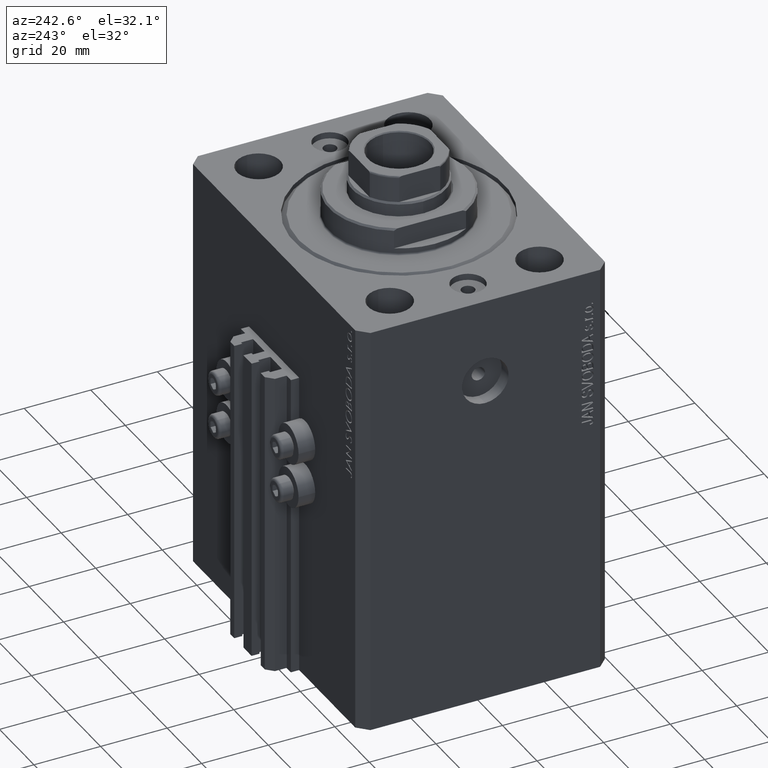
[diagram: clean part render]
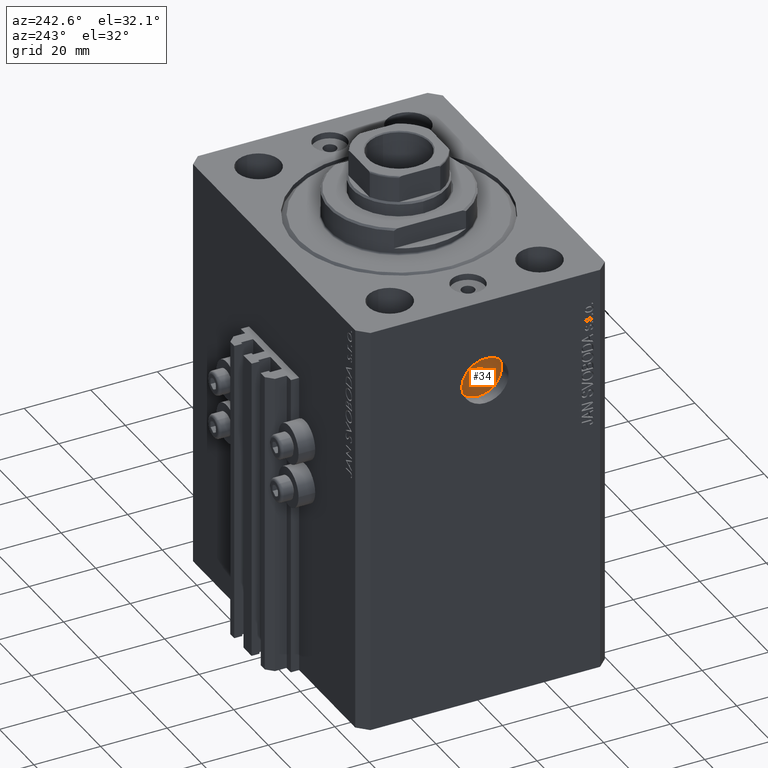
[diagram: same view with one face highlighted and labeled with its STEP entity id]
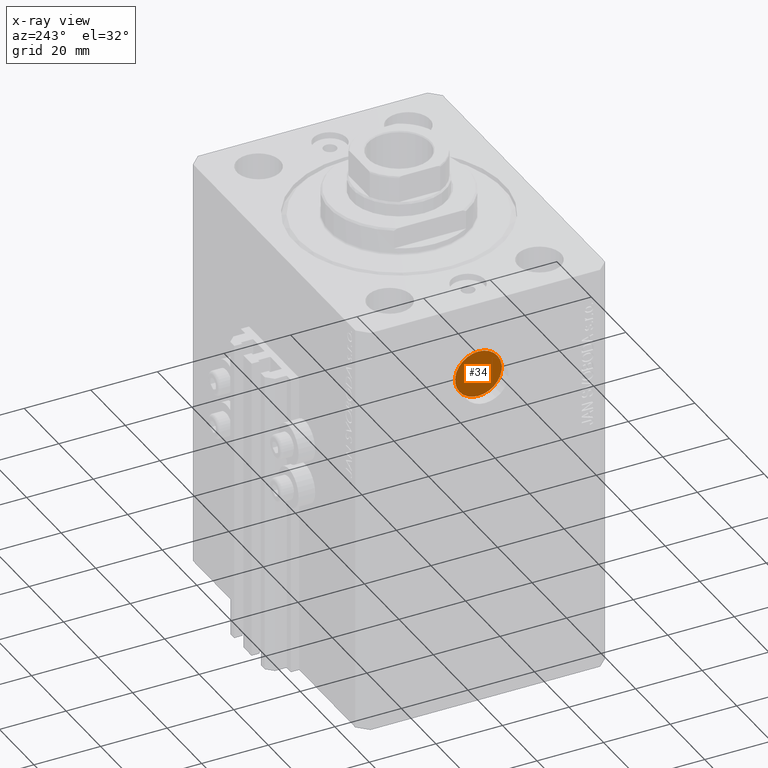
[diagram: x-ray of the same camera — body ghosted, the highlighted face saturated]
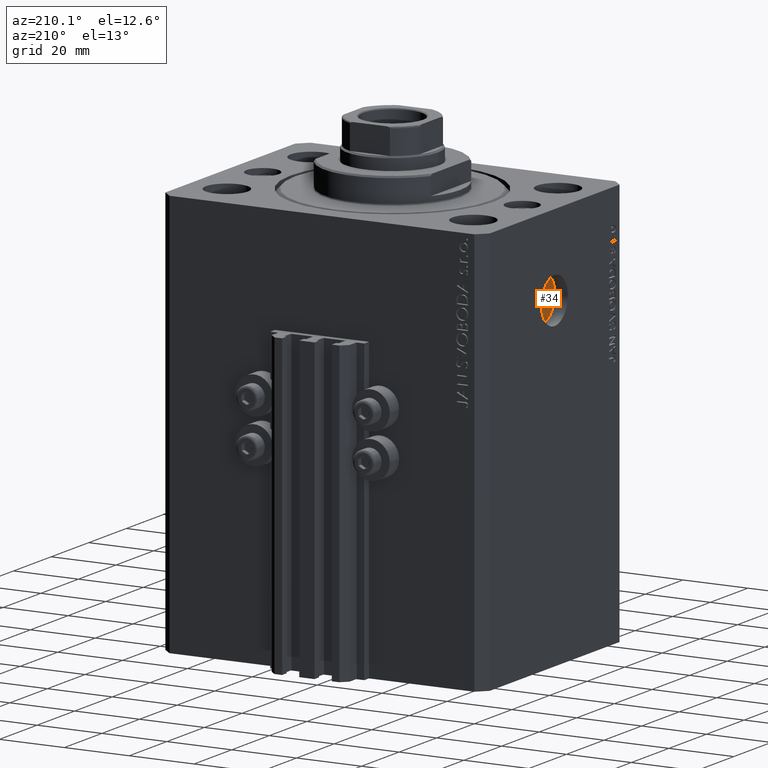
[diagram: same view with one face highlighted and labeled with its STEP entity id]
A machine part, auxiliary view. The second image highlights one B-rep face of the part: STEP entity #34.
The next image is the same camera in x-ray: the body ghosted, the highlighted face saturated — about 0% of this face is hidden behind the body in this view.
A second angle (auxiliary view) of the same face is appended — the face is thin or edge-on in the first view.
In plain terms, the highlighted planar face has unit normal (-1, 0, 0).
Its self-contained STEP definition (entity closure, byte-faithful):
#34 = ADVANCED_FACE ( 'NONE', ( #11182, #3787 ), #4498, .T. ) ;
#223 = DIRECTION ( 'NONE',  ( 0.000000000000000000, 0.000000000000000000, 1.000000000000000000 ) ) ;
#392 = DIRECTION ( 'NONE',  ( 0.000000000000000000, 0.000000000000000000, 1.000000000000000000 ) ) ;
#611 = CARTESIAN_POINT ( 'NONE',  ( -46.00000000000001421, -1.005636797667714365E-14, -24.99999999999999645 ) ) ;
#1105 = CIRCLE ( 'NONE', #27804, 1.999999999999998224 ) ;
#3787 = FACE_OUTER_BOUND ( 'NONE', #30898, .T. ) ;
#3927 = ORIENTED_EDGE ( 'NONE', *, *, #30074, .F. ) ;
#4220 = EDGE_LOOP ( 'NONE', ( #3927, #33845 ) ) ;
#4498 = PLANE ( 'NONE',  #39076 ) ;
#6119 = VERTEX_POINT ( 'NONE', #26156 ) ;
#6131 = EDGE_CURVE ( 'NONE', #8043, #18389, #18644, .T. ) ;
#6280 = EDGE_CURVE ( 'NONE', #18389, #8043, #27819, .T. ) ;
#7581 = ORIENTED_EDGE ( 'NONE', *, *, #6131, .T. ) ;
#8043 = VERTEX_POINT ( 'NONE', #25063 ) ;
#8924 = DIRECTION ( 'NONE',  ( -1.000000000000000000, 0.000000000000000000, 0.000000000000000000 ) ) ;
#11155 = ORIENTED_EDGE ( 'NONE', *, *, #6280, .T. ) ;
#11182 = FACE_BOUND ( 'NONE', #4220, .T. ) ;
#12174 = CARTESIAN_POINT ( 'NONE',  ( -46.00000000000001421, -1.005636797667714365E-14, -18.00000000000000000 ) ) ;
#12192 = EDGE_CURVE ( 'NONE', #6119, #42351, #15776, .T. ) ;
#15491 = CARTESIAN_POINT ( 'NONE',  ( -46.00000000000001421, -1.005636797667714365E-14, -24.99999999999999645 ) ) ;
#15599 = CARTESIAN_POINT ( 'NONE',  ( -46.00000000000001421, -1.005636797667714365E-14, -23.00000000000000000 ) ) ;
#15776 = CIRCLE ( 'NONE', #22635, 1.999999999999998224 ) ;
#18389 = VERTEX_POINT ( 'NONE', #12174 ) ;
#18644 = CIRCLE ( 'NONE', #45333, 6.999999999999999112 ) ;
#19079 = DIRECTION ( 'NONE',  ( -1.000000000000000000, 0.000000000000000000, 0.000000000000000000 ) ) ;
#22635 = AXIS2_PLACEMENT_3D ( 'NONE', #44094, #32877, #392 ) ;
#25063 = CARTESIAN_POINT ( 'NONE',  ( -46.00000000000001421, -9.199115217273997614E-15, -32.00000000000000000 ) ) ;
#25177 = DIRECTION ( 'NONE',  ( -1.000000000000000000, 0.000000000000000000, 0.000000000000000000 ) ) ;
#25872 = DIRECTION ( 'NONE',  ( 0.000000000000000000, 0.000000000000000000, 1.000000000000000000 ) ) ;
#26156 = CARTESIAN_POINT ( 'NONE',  ( -46.00000000000001421, -9.811438616847673355E-15, -26.99999999999999645 ) ) ;
#27804 = AXIS2_PLACEMENT_3D ( 'NONE', #29445, #25177, #25872 ) ;
#27819 = CIRCLE ( 'NONE', #44579, 6.999999999999999112 ) ;
#29445 = CARTESIAN_POINT ( 'NONE',  ( -46.00000000000001421, -1.005636797667714365E-14, -24.99999999999999645 ) ) ;
#30074 = EDGE_CURVE ( 'NONE', #42351, #6119, #1105, .T. ) ;
#30898 = EDGE_LOOP ( 'NONE', ( #11155, #7581 ) ) ;
#32877 = DIRECTION ( 'NONE',  ( -1.000000000000000000, 0.000000000000000000, 0.000000000000000000 ) ) ;
#33561 = DIRECTION ( 'NONE',  ( -1.000000000000000000, 0.000000000000000000, 0.000000000000000000 ) ) ;
#33845 = ORIENTED_EDGE ( 'NONE', *, *, #12192, .F. ) ;
#34728 = DIRECTION ( 'NONE',  ( 0.000000000000000000, 0.000000000000000000, 1.000000000000000000 ) ) ;
#39076 = AXIS2_PLACEMENT_3D ( 'NONE', #15491, #19079, #223 ) ;
#40487 = DIRECTION ( 'NONE',  ( 0.000000000000000000, 0.000000000000000000, 1.000000000000000000 ) ) ;
#41432 = CARTESIAN_POINT ( 'NONE',  ( -46.00000000000001421, -1.005636797667714365E-14, -24.99999999999999645 ) ) ;
#42351 = VERTEX_POINT ( 'NONE', #15599 ) ;
#44094 = CARTESIAN_POINT ( 'NONE',  ( -46.00000000000001421, -1.005636797667714365E-14, -24.99999999999999645 ) ) ;
#44579 = AXIS2_PLACEMENT_3D ( 'NONE', #41432, #8924, #34728 ) ;
#45333 = AXIS2_PLACEMENT_3D ( 'NONE', #611, #33561, #40487 ) ;